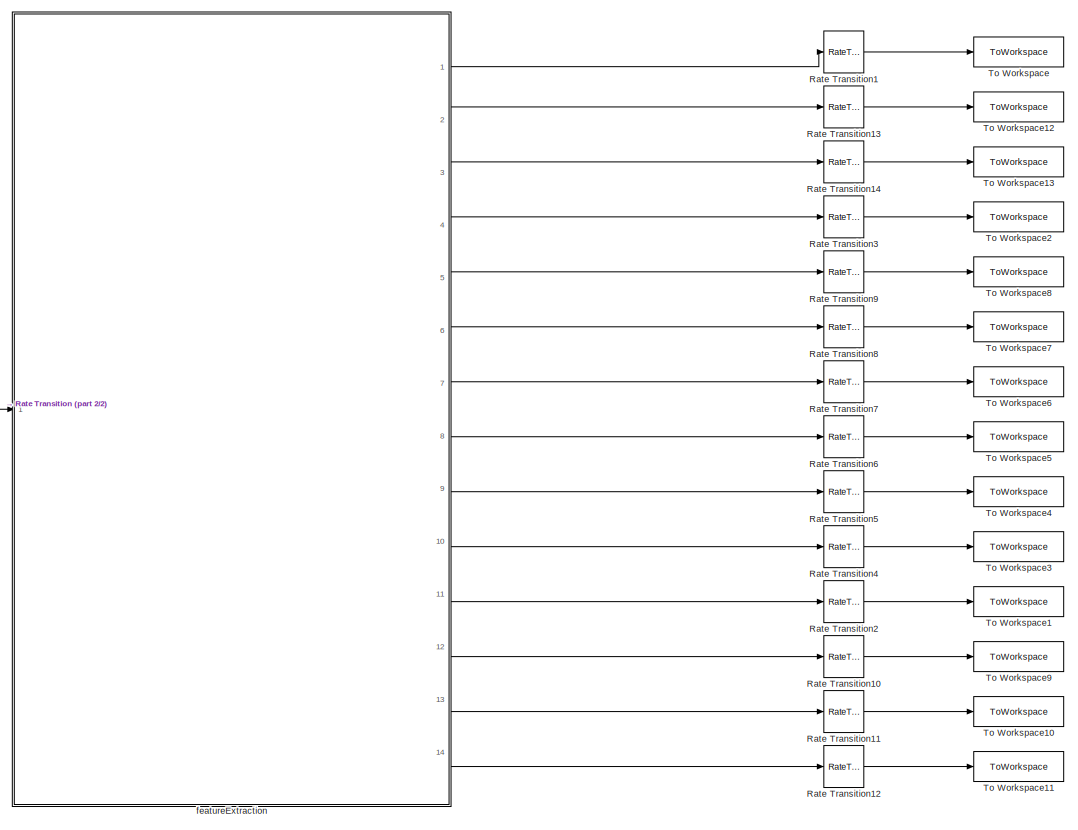
[diagram: root canvas - part 1/2, right side, full height]
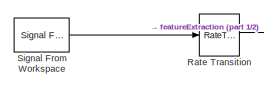
[diagram: root canvas - part 2/2, middle left region]
MODEL slx_5c834e72c9fa
KIND model
CONFIG AbsTol = auto
CONFIG EnableMultiTasking = off
CONFIG FixedStep = auto
CONFIG InitFcn = simulinkInitFeatureExtraction
CONFIG MaxStep = auto
CONFIG MinStep = auto
CONFIG PostLoadFcn = addpath([fileparts(which(bdroot)) filesep '..' filesep])\nloadDataSimulinkCallback
CONFIG RelTol = 1e-3
CONFIG SampleTimeConstraint = Unconstrained
CONFIG SolverName = FixedStepDiscrete
CONFIG StartTime = 0.0
CONFIG StopFcn = simulinkVerifyFeatureExtraction
CONFIG StopTime = stopTime
BLOCK [RateTransition] Rate Transition
  Deterministic = off
  OutPortSampleTime = params.systemClockPeriod
BLOCK [RateTransition] Rate Transition1
  OutPortSampleTime = params.samplingPeriod
BLOCK [RateTransition] Rate Transition10
  OutPortSampleTime = params.samplingPeriod
BLOCK [RateTransition] Rate Transition11
  OutPortSampleTime = params.samplingPeriod
BLOCK [RateTransition] Rate Transition12
  OutPortSampleTime = params.samplingPeriod
BLOCK [RateTransition] Rate Transition13
  OutPortSampleTime = params.samplingPeriod
BLOCK [RateTransition] Rate Transition14
  OutPortSampleTime = params.samplingPeriod
BLOCK [RateTransition] Rate Transition2
  OutPortSampleTime = params.samplingPeriod
BLOCK [RateTransition] Rate Transition3
  OutPortSampleTime = params.samplingPeriod
BLOCK [RateTransition] Rate Transition4
  OutPortSampleTime = params.samplingPeriod
BLOCK [RateTransition] Rate Transition5
  OutPortSampleTime = params.samplingPeriod
BLOCK [RateTransition] Rate Transition6
  OutPortSampleTime = params.samplingPeriod
BLOCK [RateTransition] Rate Transition7
  OutPortSampleTime = params.samplingPeriod
BLOCK [RateTransition] Rate Transition8
  OutPortSampleTime = params.samplingPeriod
BLOCK [RateTransition] Rate Transition9
  OutPortSampleTime = params.samplingPeriod
BLOCK [Reference] Signal From Workspace  REF=dspsrcs4/Signal From
Workspace
  Ports = [0, 1]
  SourceBlock = dspsrcs4/Signal From\nWorkspace
  SourceProductBaseCode = DS
  SourceType = Signal From Workspace
BLOCK [ToWorkspace] To Workspace
  FixptAsFi = on
  MaxDataPoints = inf
  Ports = [1]
  SampleTime = -1
  Save2DSignal = 2-D array (concatenate along first dimension)
  VariableName = meanOut
BLOCK [ToWorkspace] To Workspace1
  FixptAsFi = on
  MaxDataPoints = inf
  Ports = [1]
  SampleTime = -1
  Save2DSignal = 2-D array (concatenate along first dimension)
  VariableName = meanEsdOut
BLOCK [ToWorkspace] To Workspace10
  FixptAsFi = on
  MaxDataPoints = inf
  Ports = [1]
  SampleTime = -1
  Save2DSignal = 2-D array (concatenate along first dimension)
  VariableName = skewnessEsdOut
BLOCK [ToWorkspace] To Workspace11
  FixptAsFi = on
  MaxDataPoints = inf
  Ports = [1]
  SampleTime = -1
  Save2DSignal = 2-D array (concatenate along first dimension)
  VariableName = kurtosisEsdOut
BLOCK [ToWorkspace] To Workspace12
  FixptAsFi = on
  MaxDataPoints = inf
  Ports = [1]
  SampleTime = -1
  Save2DSignal = 2-D array (concatenate along first dimension)
  VariableName = stdOut
BLOCK [ToWorkspace] To Workspace13
  FixptAsFi = on
  MaxDataPoints = inf
  Ports = [1]
  SampleTime = -1
  Save2DSignal = 2-D array (concatenate along first dimension)
  VariableName = maxDiffOut
BLOCK [ToWorkspace] To Workspace2
  FixptAsFi = on
  MaxDataPoints = inf
  Ports = [1]
  SampleTime = -1
  Save2DSignal = 2-D array (concatenate along first dimension)
  VariableName = harmonicHeightsOut
BLOCK [ToWorkspace] To Workspace3
  FixptAsFi = on
  MaxDataPoints = inf
  Ports = [1]
  SampleTime = -1
  Save2DSignal = 2-D array (concatenate along first dimension)
  VariableName = harmonicLocationsOut
BLOCK [ToWorkspace] To Workspace4
  FixptAsFi = on
  MaxDataPoints = inf
  Ports = [1]
  SampleTime = -1
  Save2DSignal = 2-D array (concatenate along first dimension)
  VariableName = harmonicProminenceRatiosOut
BLOCK [ToWorkspace] To Workspace5
  FixptAsFi = on
  MaxDataPoints = inf
  Ports = [1]
  SampleTime = -1
  Save2DSignal = 2-D array (concatenate along first dimension)
  VariableName = harmonicWidthRatiosOut
BLOCK [ToWorkspace] To Workspace6
  FixptAsFi = on
  MaxDataPoints = inf
  Ports = [1]
  SampleTime = -1
  Save2DSignal = 2-D array (concatenate along first dimension)
  VariableName = harmonicHeightRatiosOut
BLOCK [ToWorkspace] To Workspace7
  FixptAsFi = on
  MaxDataPoints = inf
  Ports = [1]
  SampleTime = -1
  Save2DSignal = 2-D array (concatenate along first dimension)
  VariableName = harmonicProminencesOut
BLOCK [ToWorkspace] To Workspace8
  FixptAsFi = on
  MaxDataPoints = inf
  Ports = [1]
  SampleTime = -1
  Save2DSignal = 2-D array (concatenate along first dimension)
  VariableName = harmonicWidthsOut
BLOCK [ToWorkspace] To Workspace9
  FixptAsFi = on
  MaxDataPoints = inf
  Ports = [1]
  SampleTime = -1
  Save2DSignal = 2-D array (concatenate along first dimension)
  VariableName = stdEsdOut
BLOCK [SubSystem] featureExtraction
  Ports = [1, 14]
  ReferencedSubsystem = featureExtraction
  RequestExecContextInheritance = off
LINE Rate Transition10:1 -> To Workspace9:1
LINE Rate Transition11:1 -> To Workspace10:1
LINE Rate Transition12:1 -> To Workspace11:1
LINE Rate Transition13:1 -> To Workspace12:1
LINE Rate Transition14:1 -> To Workspace13:1
LINE Rate Transition1:1 -> To Workspace:1
LINE Rate Transition2:1 -> To Workspace1:1
LINE Rate Transition3:1 -> To Workspace2:1
LINE Rate Transition4:1 -> To Workspace3:1
LINE Rate Transition5:1 -> To Workspace4:1
LINE Rate Transition6:1 -> To Workspace5:1
LINE Rate Transition7:1 -> To Workspace6:1
LINE Rate Transition8:1 -> To Workspace7:1
LINE Rate Transition9:1 -> To Workspace8:1
LINE Rate Transition:1 -> featureExtraction:1
LINE Signal From Workspace:1 -> Rate Transition:1
LINE featureExtraction:1 -> Rate Transition1:1
LINE featureExtraction:10 -> Rate Transition4:1
LINE featureExtraction:11 -> Rate Transition2:1
LINE featureExtraction:12 -> Rate Transition10:1
LINE featureExtraction:13 -> Rate Transition11:1
LINE featureExtraction:14 -> Rate Transition12:1
LINE featureExtraction:2 -> Rate Transition13:1
LINE featureExtraction:3 -> Rate Transition14:1
LINE featureExtraction:4 -> Rate Transition3:1
LINE featureExtraction:5 -> Rate Transition9:1
LINE featureExtraction:6 -> Rate Transition8:1
LINE featureExtraction:7 -> Rate Transition7:1
LINE featureExtraction:8 -> Rate Transition6:1
LINE featureExtraction:9 -> Rate Transition5:1
